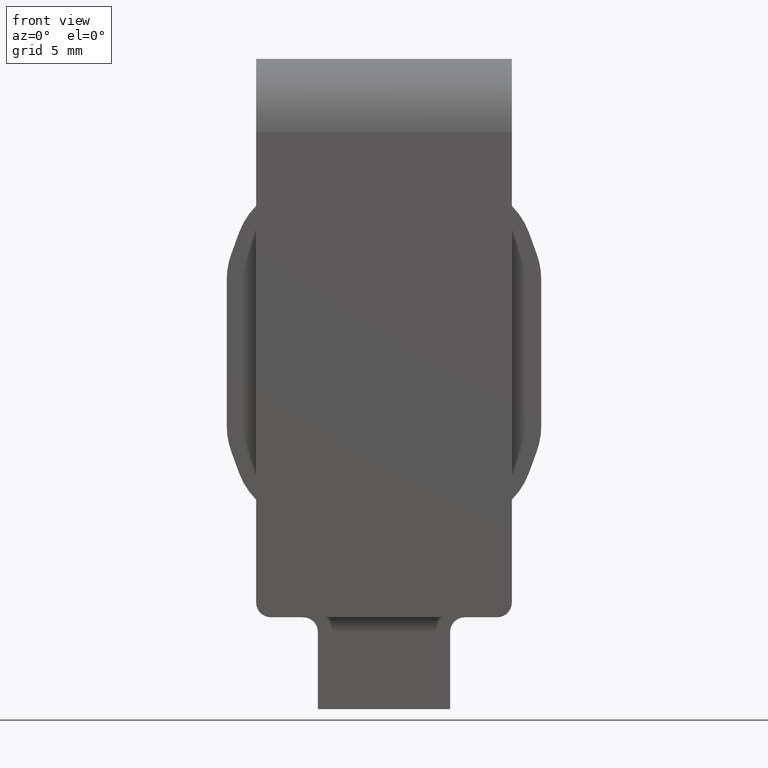
[diagram: clean part render]
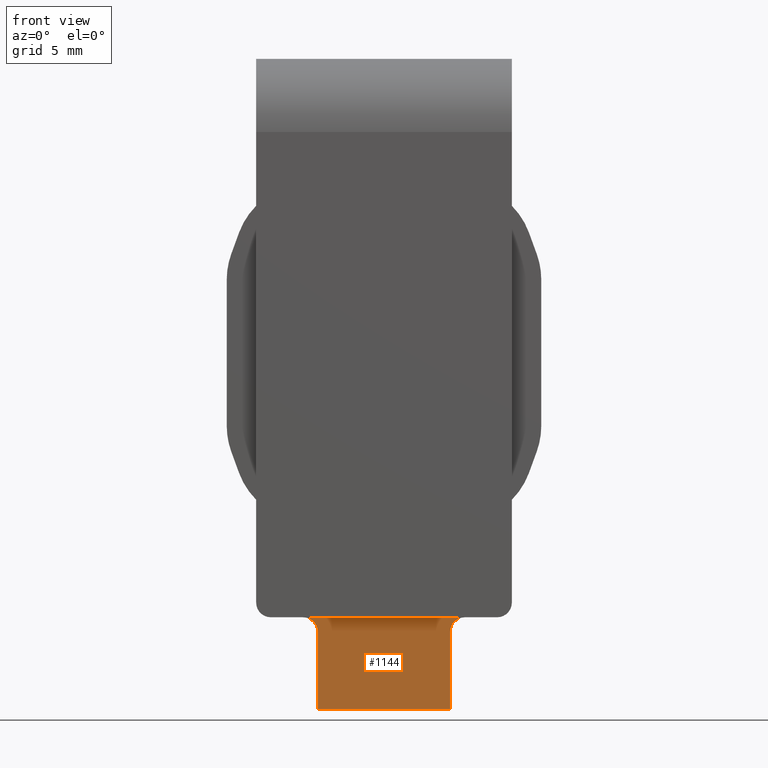
[diagram: same view with one face highlighted and labeled with its STEP entity id]
A machine part, front view. The second image highlights one B-rep face of the part: STEP entity #1144.
In plain terms, the highlighted planar face has unit normal (0, 1, 0).
Its self-contained STEP definition (entity closure, byte-faithful):
#255 = EDGE_CURVE ( 'NONE', #11358, #9788, #10525, .T. ) ;
#693 = ORIENTED_EDGE ( 'NONE', *, *, #6102, .F. ) ;
#699 = EDGE_LOOP ( 'NONE', ( #15433, #2416, #4489, #4043, #693, #9453 ) ) ;
#1144 = ADVANCED_FACE ( 'NONE', ( #13119 ), #7406, .F. ) ;
#1151 = DIRECTION ( 'NONE',  ( 0.000000000000000000, 0.000000000000000000, 1.000000000000000000 ) ) ;
#1292 = DIRECTION ( 'NONE',  ( -1.000000000000000000, -0.000000000000000000, -0.000000000000000000 ) ) ;
#1541 = DIRECTION ( 'NONE',  ( 0.000000000000000000, 0.000000000000000000, 1.000000000000000000 ) ) ;
#1610 = VECTOR ( 'NONE', #4222, 1000.000000000000000 ) ;
#1631 = CARTESIAN_POINT ( 'NONE',  ( 8.699999999999999289, 2.509999999999999787, -6.250000000000000000 ) ) ;
#1835 = VECTOR ( 'NONE', #1292, 1000.000000000000000 ) ;
#2416 = ORIENTED_EDGE ( 'NONE', *, *, #16204, .T. ) ;
#2553 = CIRCLE ( 'NONE', #4125, 1.000000000000000000 ) ;
#2596 = CARTESIAN_POINT ( 'NONE',  ( 4.499999999999999112, 2.509999999999999787, 6.779035550246951480 ) ) ;
#3045 = AXIS2_PLACEMENT_3D ( 'NONE', #6726, #6837, #1541 ) ;
#3652 = CARTESIAN_POINT ( 'NONE',  ( 8.699999999999999289, 2.509999999999999787, 0.000000000000000000 ) ) ;
#3793 = CARTESIAN_POINT ( 'NONE',  ( -5.500000000000001776, 2.509999999999999787, 0.000000000000000000 ) ) ;
#3802 = CIRCLE ( 'NONE', #3045, 1.000000000000000000 ) ;
#4043 = ORIENTED_EDGE ( 'NONE', *, *, #255, .F. ) ;
#4125 = AXIS2_PLACEMENT_3D ( 'NONE', #8634, #16202, #1151 ) ;
#4222 = DIRECTION ( 'NONE',  ( -1.000000000000000000, -0.000000000000000000, -0.000000000000000000 ) ) ;
#4401 = LINE ( 'NONE', #7515, #1835 ) ;
#4476 = CARTESIAN_POINT ( 'NONE',  ( 5.500000000000000000, 2.509999999999999787, 0.000000000000000000 ) ) ;
#4489 = ORIENTED_EDGE ( 'NONE', *, *, #15214, .T. ) ;
#4758 = DIRECTION ( 'NONE',  ( -0.000000000000000000, 1.000000000000000000, 0.000000000000000000 ) ) ;
#6102 = EDGE_CURVE ( 'NONE', #7986, #11358, #10071, .T. ) ;
#6237 = VERTEX_POINT ( 'NONE', #10599 ) ;
#6726 = CARTESIAN_POINT ( 'NONE',  ( 5.499999999999999112, 2.509999999999999787, -1.000000000000000000 ) ) ;
#6837 = DIRECTION ( 'NONE',  ( -0.000000000000000000, 1.000000000000000000, 0.000000000000000000 ) ) ;
#7406 = PLANE ( 'NONE',  #10111 ) ;
#7459 = VERTEX_POINT ( 'NONE', #4476 ) ;
#7515 = CARTESIAN_POINT ( 'NONE',  ( 8.699999999999999289, 2.509999999999999787, 0.000000000000000000 ) ) ;
#7553 = VECTOR ( 'NONE', #13664, 1000.000000000000000 ) ;
#7824 = DIRECTION ( 'NONE',  ( -0.000000000000000000, -0.000000000000000000, -1.000000000000000000 ) ) ;
#7986 = VERTEX_POINT ( 'NONE', #13556 ) ;
#8565 = CARTESIAN_POINT ( 'NONE',  ( -4.500000000000000888, 2.509999999999999787, 6.779035550246951480 ) ) ;
#8634 = CARTESIAN_POINT ( 'NONE',  ( -5.500000000000001776, 2.509999999999999787, -1.000000000000000000 ) ) ;
#8719 = DIRECTION ( 'NONE',  ( 0.000000000000000000, -0.000000000000000000, 1.000000000000000000 ) ) ;
#8889 = VERTEX_POINT ( 'NONE', #3793 ) ;
#9453 = ORIENTED_EDGE ( 'NONE', *, *, #11626, .T. ) ;
#9701 = CARTESIAN_POINT ( 'NONE',  ( 4.499999999999999112, 2.509999999999999787, -6.250000000000000000 ) ) ;
#9788 = VERTEX_POINT ( 'NONE', #16170 ) ;
#10071 = LINE ( 'NONE', #2596, #11056 ) ;
#10111 = AXIS2_PLACEMENT_3D ( 'NONE', #3652, #4758, #8719 ) ;
#10525 = LINE ( 'NONE', #1631, #1610 ) ;
#10599 = CARTESIAN_POINT ( 'NONE',  ( -4.500000000000000888, 2.509999999999999787, -1.000000000000000000 ) ) ;
#10844 = EDGE_CURVE ( 'NONE', #7459, #8889, #4401, .T. ) ;
#11056 = VECTOR ( 'NONE', #7824, 1000.000000000000000 ) ;
#11358 = VERTEX_POINT ( 'NONE', #9701 ) ;
#11626 = EDGE_CURVE ( 'NONE', #7986, #7459, #3802, .T. ) ;
#13119 = FACE_OUTER_BOUND ( 'NONE', #699, .T. ) ;
#13556 = CARTESIAN_POINT ( 'NONE',  ( 4.499999999999999112, 2.509999999999999787, -1.000000000000000000 ) ) ;
#13664 = DIRECTION ( 'NONE',  ( -0.000000000000000000, -0.000000000000000000, -1.000000000000000000 ) ) ;
#14478 = LINE ( 'NONE', #8565, #7553 ) ;
#15214 = EDGE_CURVE ( 'NONE', #6237, #9788, #14478, .T. ) ;
#15433 = ORIENTED_EDGE ( 'NONE', *, *, #10844, .T. ) ;
#16170 = CARTESIAN_POINT ( 'NONE',  ( -4.500000000000000888, 2.509999999999999787, -6.250000000000000000 ) ) ;
#16202 = DIRECTION ( 'NONE',  ( -0.000000000000000000, 1.000000000000000000, 0.000000000000000000 ) ) ;
#16204 = EDGE_CURVE ( 'NONE', #8889, #6237, #2553, .T. ) ;